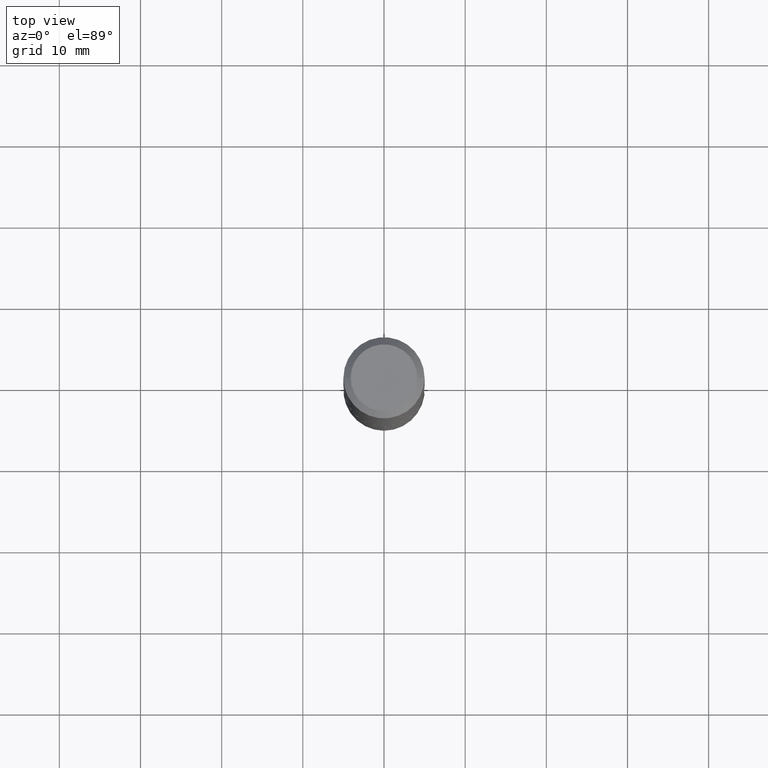
[diagram: clean part render]
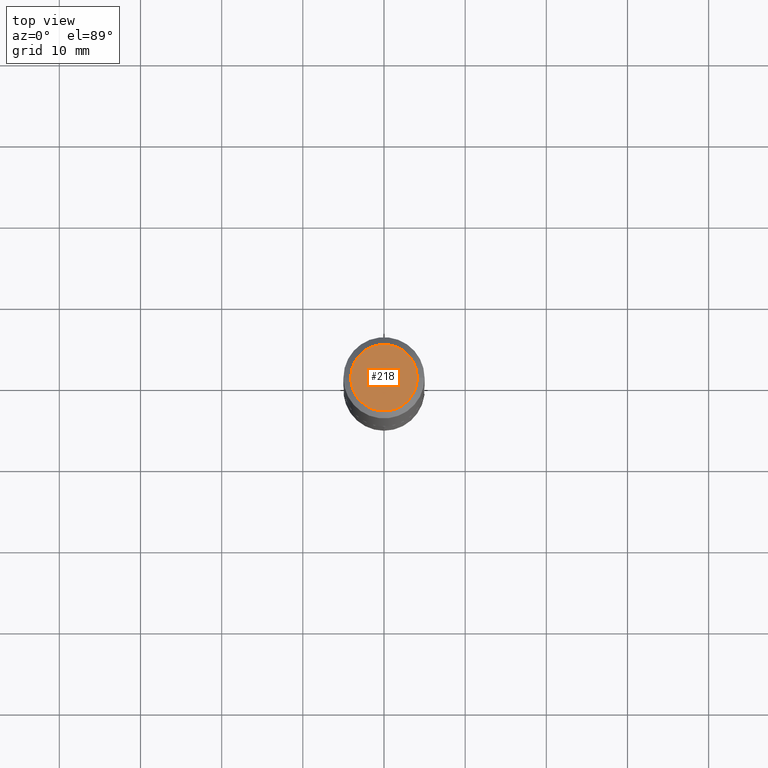
[diagram: same view with one face highlighted and labeled with its STEP entity id]
A machine part, top view. The second image highlights one B-rep face of the part: STEP entity #218.
In plain terms, the highlighted planar face has unit normal (0, -0, -1).
Its self-contained STEP definition (entity closure, byte-faithful):
#16 = CIRCLE ( 'NONE', #216, 0.1618500000000000216 ) ;
#24 = AXIS2_PLACEMENT_3D ( 'NONE', #51, #186, #54 ) ;
#31 = CIRCLE ( 'NONE', #24, 0.1618500000000000216 ) ;
#51 = CARTESIAN_POINT ( 'NONE',  ( -4.406900505805576113E-46, 6.291885972637398948E-32, 1.802067764945330938E-17 ) ) ;
#54 = DIRECTION ( 'NONE',  ( 1.000000000000000000, -6.982962677686265922E-15, 4.876910603302640738E-29 ) ) ;
#60 = DIRECTION ( 'NONE',  ( 1.000000000000000000, -6.982962677686265922E-15, 4.876910603302640738E-29 ) ) ;
#64 = CARTESIAN_POINT ( 'NONE',  ( 0.1618500000000000216, -1.291531239330079675E-15, 1.802067764946177423E-17 ) ) ;
#66 = FACE_OUTER_BOUND ( 'NONE', #364, .T. ) ;
#80 = VERTEX_POINT ( 'NONE', #322 ) ;
#111 = CARTESIAN_POINT ( 'NONE',  ( -2.203450252902788057E-46, 3.145942986318699474E-32, 9.010338824726654690E-18 ) ) ;
#147 = DIRECTION ( 'NONE',  ( 2.438088387897960049E-29, -3.491481338843145188E-15, -1.000000000000000000 ) ) ;
#156 = AXIS2_PLACEMENT_3D ( 'NONE', #111, #147, #214 ) ;
#186 = DIRECTION ( 'NONE',  ( -2.445468806185136597E-29, 3.491481338843145583E-15, 1.000000000000000000 ) ) ;
#198 = PLANE ( 'NONE',  #156 ) ;
#210 = VERTEX_POINT ( 'NONE', #64 ) ;
#214 = DIRECTION ( 'NONE',  ( -1.000000000000000000, 6.982962677686265922E-15, -4.876176775795935793E-29 ) ) ;
#216 = AXIS2_PLACEMENT_3D ( 'NONE', #381, #402, #60 ) ;
#217 = ORIENTED_EDGE ( 'NONE', *, *, #355, .T. ) ;
#218 = ADVANCED_FACE ( 'NONE', ( #66 ), #198, .F. ) ;
#240 = ORIENTED_EDGE ( 'NONE', *, *, #339, .T. ) ;
#322 = CARTESIAN_POINT ( 'NONE',  ( -0.1618500000000000216, 1.191293432813276437E-15, 1.802067764944519274E-17 ) ) ;
#339 = EDGE_CURVE ( 'NONE', #80, #210, #16, .T. ) ;
#355 = EDGE_CURVE ( 'NONE', #210, #80, #31, .T. ) ;
#364 = EDGE_LOOP ( 'NONE', ( #240, #217 ) ) ;
#381 = CARTESIAN_POINT ( 'NONE',  ( -4.406900505805576113E-46, 6.291885972637398948E-32, 1.802067764945330938E-17 ) ) ;
#402 = DIRECTION ( 'NONE',  ( -2.445468806185136597E-29, 3.491481338843145583E-15, 1.000000000000000000 ) ) ;